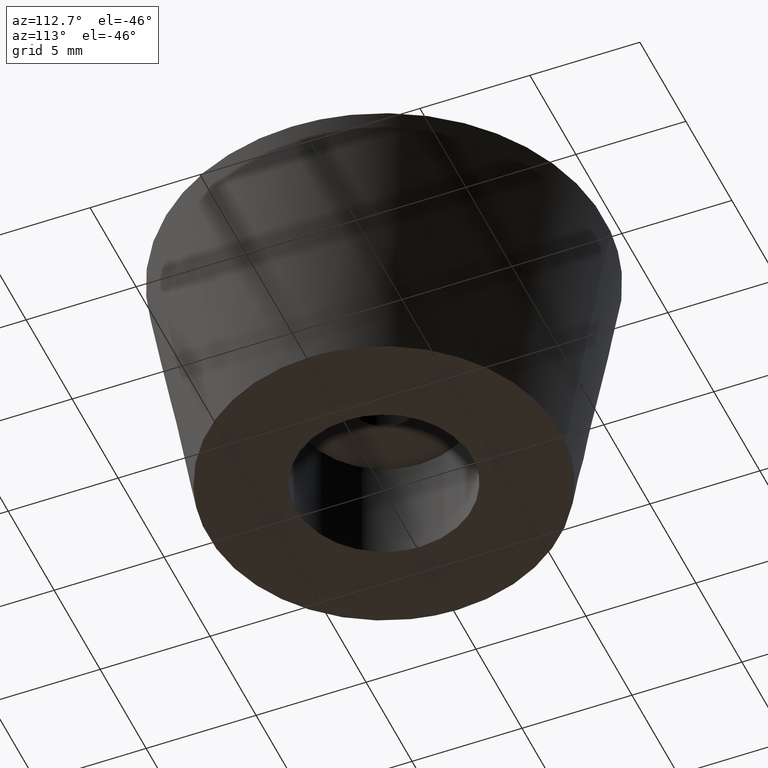
[diagram: clean part render]
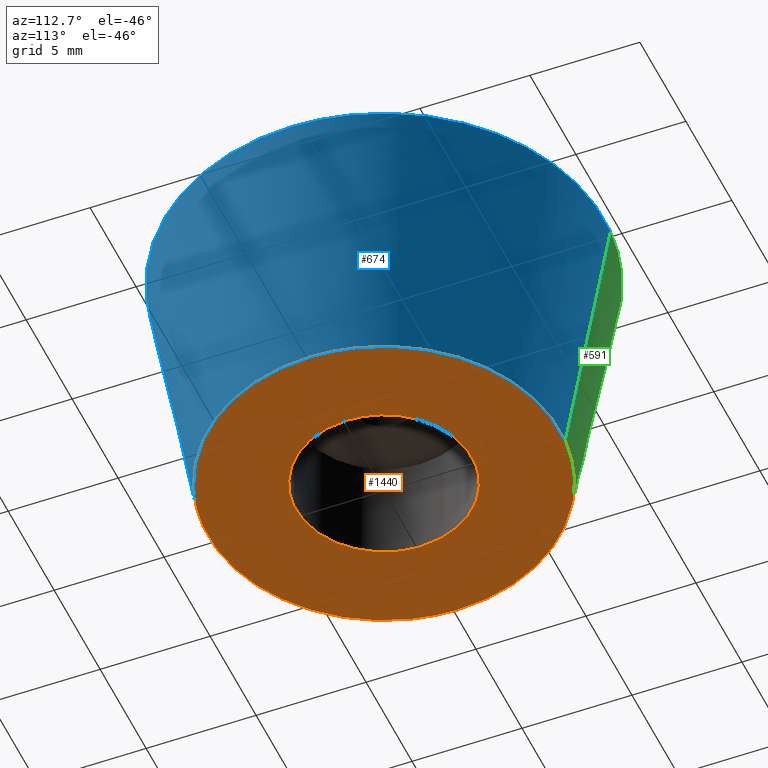
[diagram: same view with three faces highlighted in distinct colors, each labeled with its STEP entity id]
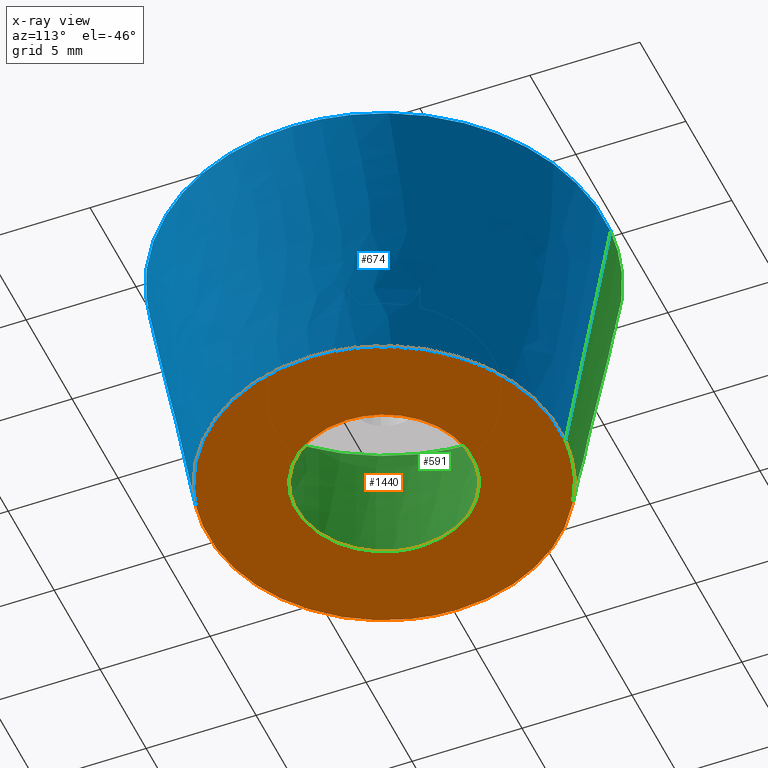
[diagram: x-ray of the same camera — body ghosted, the three highlighted faces saturated]
A machine part, auxiliary view with three faces highlighted in distinct colors.
The next image is the same camera in x-ray (body ghosted, the three faces saturated) — at least one of them is partly hidden behind the body in this view.
Their STEP definitions:

[orange] entity #1440 — the highlighted face is a freeform B-spline surface patch.
#511=CARTESIAN_POINT('',(-8.0,0.0,0.0));
#512=VERTEX_POINT('',#511);
#513=CARTESIAN_POINT('',(-0.627667565041564,7.975338703403389,-0.000002247661498));
#514=VERTEX_POINT('',#513);
#515=CARTESIAN_POINT('',(-8.0,0.0,0.0));
#516=CARTESIAN_POINT('',(-7.999999985304264,7.395128556531391,-0.000001123830749));
#517=CARTESIAN_POINT('',(-0.627667565041564,7.975338703403389,-0.000002247661498));
#525=(BOUNDED_CURVE()B_SPLINE_CURVE(2,(#515,#516,#517),.UNSPECIFIED.,.F.,.U.)B_SPLINE_CURVE_WITH_KNOTS((3,3),(0.0,0.236331411788289),.UNSPECIFIED.)CURVE()GEOMETRIC_REPRESENTATION_ITEM()RATIONAL_B_SPLINE_CURVE((1.0,0.723120528378403,0.969723588145025))REPRESENTATION_ITEM(''));
#526=EDGE_CURVE('',#512,#514,#525,.T.);
#528=CARTESIAN_POINT('',(0.627667565041564,-7.975338703403388,-0.000002247661499));
#529=VERTEX_POINT('',#528);
#530=CARTESIAN_POINT('',(0.627667565041564,-7.975338703403388,-0.000002247661499));
#531=CARTESIAN_POINT('',(0.314318229509466,-7.999999633324672,-0.000002206844950));
#532=CARTESIAN_POINT('',(-0.000000028280341,-7.999999640661196,-0.000002162689884));
#533=CARTESIAN_POINT('',(-8.000000013584607,-7.999999827389770,-0.000001038859135));
#534=CARTESIAN_POINT('',(-8.0,0.0,0.0));
#542=(BOUNDED_CURVE()B_SPLINE_CURVE(2,(#530,#531,#532,#533,#534),.UNSPECIFIED.,.F.,.U.)B_SPLINE_CURVE_WITH_KNOTS((3,2,3),(0.736331411788289,0.750000000000000,1.0),.UNSPECIFIED.)CURVE()GEOMETRIC_REPRESENTATION_ITEM()RATIONAL_B_SPLINE_CURVE((0.969723588145025,0.983986252808145,1.0,0.707106781186548,1.0))REPRESENTATION_ITEM(''));
#543=EDGE_CURVE('',#529,#512,#542,.T.);
#610=CARTESIAN_POINT('',(8.0,0.0,0.0));
#611=VERTEX_POINT('',#610);
#612=CARTESIAN_POINT('',(-0.627667565041564,7.975338703403389,-0.000002247661498));
#613=CARTESIAN_POINT('',(-0.314318229509465,7.999999633324673,-0.000002206844949));
#614=CARTESIAN_POINT('',(0.000000028280343,7.999999640661197,-0.000002162689883));
#615=CARTESIAN_POINT('',(8.000000013584607,7.999999827389770,-0.000001038859134));
#616=CARTESIAN_POINT('',(8.0,0.0,0.0));
#624=(BOUNDED_CURVE()B_SPLINE_CURVE(2,(#612,#613,#614,#615,#616),.UNSPECIFIED.,.F.,.U.)B_SPLINE_CURVE_WITH_KNOTS((3,2,3),(0.236331411788289,0.250000000000000,0.500000000000000),.UNSPECIFIED.)CURVE()GEOMETRIC_REPRESENTATION_ITEM()RATIONAL_B_SPLINE_CURVE((0.969723588145025,0.983986252808145,1.0,0.707106781186548,1.0))REPRESENTATION_ITEM(''));
#625=EDGE_CURVE('',#514,#611,#624,.T.);
#659=CARTESIAN_POINT('',(8.0,0.0,0.0));
#660=CARTESIAN_POINT('',(7.999999985304266,-7.395128556531391,-0.000001123830749));
#661=CARTESIAN_POINT('',(0.627667565041564,-7.975338703403388,-0.000002247661499));
#669=(BOUNDED_CURVE()B_SPLINE_CURVE(2,(#659,#660,#661),.UNSPECIFIED.,.F.,.U.)B_SPLINE_CURVE_WITH_KNOTS((3,3),(0.500000000000000,0.736331411788289),.UNSPECIFIED.)CURVE()GEOMETRIC_REPRESENTATION_ITEM()RATIONAL_B_SPLINE_CURVE((1.0,0.723120528378403,0.969723588145025))REPRESENTATION_ITEM(''));
#670=EDGE_CURVE('',#611,#529,#669,.T.);
#1255=CARTESIAN_POINT('',(-0.472129948118010,3.972038936370151,4.401114E-016));
#1256=VERTEX_POINT('',#1255);
#1257=CARTESIAN_POINT('',(4.0,0.0,0.0));
#1258=VERTEX_POINT('',#1257);
#1259=CARTESIAN_POINT('',(-0.472129948118010,3.972038936370151,4.401114E-016));
#1260=CARTESIAN_POINT('',(-0.236892946402667,4.0,0.0));
#1261=CARTESIAN_POINT('',(0.0,4.0,0.0));
#1262=CARTESIAN_POINT('',(4.000000000000000,4.000000000000000,0.0));
#1263=CARTESIAN_POINT('',(4.0,0.0,0.0));
#1271=(BOUNDED_CURVE()B_SPLINE_CURVE(2,(#1259,#1260,#1261,#1262,#1263),.UNSPECIFIED.,.F.,.U.)B_SPLINE_CURVE_WITH_KNOTS((3,2,3),(0.229562770949563,0.250000000000000,0.500000000000000),.UNSPECIFIED.)CURVE()GEOMETRIC_REPRESENTATION_ITEM()RATIONAL_B_SPLINE_CURVE((0.956027337171368,0.976056296799159,1.0,0.707106781186548,1.0))REPRESENTATION_ITEM(''));
#1272=EDGE_CURVE('',#1256,#1258,#1271,.T.);
#1274=CARTESIAN_POINT('',(0.244192892551057,-3.992539271093766,2.491063E-015));
#1275=VERTEX_POINT('',#1274);
#1276=CARTESIAN_POINT('',(4.0,0.0,0.0));
#1277=CARTESIAN_POINT('',(4.000000000000001,-3.762825462623270,0.0));
#1278=CARTESIAN_POINT('',(0.244192892551057,-3.992539271093766,2.491063E-015));
#1286=(BOUNDED_CURVE()B_SPLINE_CURVE(2,(#1276,#1277,#1278),.UNSPECIFIED.,.F.,.U.)B_SPLINE_CURVE_WITH_KNOTS((3,3),(0.500000000000000,0.739333016937291),.UNSPECIFIED.)CURVE()GEOMETRIC_REPRESENTATION_ITEM()RATIONAL_B_SPLINE_CURVE((1.0,0.719603929203609,0.976072158895718))REPRESENTATION_ITEM(''));
#1287=EDGE_CURVE('',#1258,#1275,#1286,.T.);
#1358=CARTESIAN_POINT('',(-4.0,0.0,0.0));
#1359=VERTEX_POINT('',#1358);
#1360=CARTESIAN_POINT('',(-4.0,0.0,0.0));
#1361=CARTESIAN_POINT('',(-4.000000000000000,3.552704400324676,0.0));
#1362=CARTESIAN_POINT('',(-0.472129948118010,3.972038936370151,4.401114E-016));
#1370=(BOUNDED_CURVE()B_SPLINE_CURVE(2,(#1360,#1361,#1362),.UNSPECIFIED.,.F.,.U.)B_SPLINE_CURVE_WITH_KNOTS((3,3),(0.0,0.229562770949563),.UNSPECIFIED.)CURVE()GEOMETRIC_REPRESENTATION_ITEM()RATIONAL_B_SPLINE_CURVE((1.0,0.731050484387389,0.956027337171368))REPRESENTATION_ITEM(''));
#1371=EDGE_CURVE('',#1359,#1256,#1370,.T.);
#1405=CARTESIAN_POINT('',(0.244192892551057,-3.992539271093766,2.491063E-015));
#1406=CARTESIAN_POINT('',(0.122210418625892,-4.000000000000001,0.0));
#1407=CARTESIAN_POINT('',(0.0,-4.0,0.0));
#1408=CARTESIAN_POINT('',(-4.000000000000000,-4.000000000000000,0.0));
#1409=CARTESIAN_POINT('',(-4.0,0.0,0.0));
#1417=(BOUNDED_CURVE()B_SPLINE_CURVE(2,(#1405,#1406,#1407,#1408,#1409),.UNSPECIFIED.,.F.,.U.)B_SPLINE_CURVE_WITH_KNOTS((3,2,3),(0.739333016937291,0.750000000000000,1.0),.UNSPECIFIED.)CURVE()GEOMETRIC_REPRESENTATION_ITEM()RATIONAL_B_SPLINE_CURVE((0.976072158895718,0.987502851982938,1.0,0.707106781186548,1.0))REPRESENTATION_ITEM(''));
#1418=EDGE_CURVE('',#1275,#1359,#1417,.T.);
#1423=CARTESIAN_POINT('',(-8.799199968988896,-8.796757514061921,0.0));
#1424=CARTESIAN_POINT('',(8.799200398142338,-8.796757514061921,0.0));
#1425=CARTESIAN_POINT('',(-8.799199968988896,8.796757227959626,0.0));
#1426=CARTESIAN_POINT('',(8.799200398142338,8.796757227959626,0.0));
#1427=B_SPLINE_SURFACE_WITH_KNOTS('',1,1,((#1423,#1425),(#1424,#1426)),.UNSPECIFIED.,.F.,.F.,.U.,(2,2),(2,2),(0.0,17.598400367131230),(0.0,17.593514742021551),.UNSPECIFIED.);
#1428=ORIENTED_EDGE('',*,*,#526,.T.);
#1429=ORIENTED_EDGE('',*,*,#625,.T.);
#1430=ORIENTED_EDGE('',*,*,#670,.T.);
#1431=ORIENTED_EDGE('',*,*,#543,.T.);
#1432=EDGE_LOOP('',(#1428,#1429,#1430,#1431));
#1433=FACE_OUTER_BOUND('',#1432,.T.);
#1434=ORIENTED_EDGE('',*,*,#1287,.F.);
#1435=ORIENTED_EDGE('',*,*,#1272,.F.);
#1436=ORIENTED_EDGE('',*,*,#1371,.F.);
#1437=ORIENTED_EDGE('',*,*,#1418,.F.);
#1438=EDGE_LOOP('',(#1434,#1435,#1436,#1437));
#1439=FACE_BOUND('',#1438,.T.);
#1440=ADVANCED_FACE('',(#1433,#1439),#1427,.F.);

[blue] entity #674 — the highlighted face is a freeform B-spline surface patch.
#513=CARTESIAN_POINT('',(-0.627667565041564,7.975338703403389,-0.000002247661498));
#514=VERTEX_POINT('',#513);
#528=CARTESIAN_POINT('',(0.627667565041564,-7.975338703403388,-0.000002247661499));
#529=VERTEX_POINT('',#528);
#545=CARTESIAN_POINT('',(0.784585191233455,-9.969173368294124,11.999997470832160));
#546=VERTEX_POINT('',#545);
#547=CARTESIAN_POINT('',(0.627667565041564,-7.975338703403388,-0.000002247661499));
#548=CARTESIAN_POINT('',(0.784585191233455,-9.969173368294124,11.999997470832160));
#549=QUASI_UNIFORM_CURVE('',1,(#547,#548),.UNSPECIFIED.,.F.,.U.);
#550=EDGE_CURVE('',#529,#546,#549,.T.);
#569=CARTESIAN_POINT('',(-0.784585191233454,9.969173368294124,11.999997470832170));
#570=VERTEX_POINT('',#569);
#584=CARTESIAN_POINT('',(-0.627667565041564,7.975338703403389,-0.000002247661498));
#585=CARTESIAN_POINT('',(-0.784585191233454,9.969173368294124,11.999997470832170));
#586=QUASI_UNIFORM_CURVE('',1,(#584,#585),.UNSPECIFIED.,.F.,.U.);
#587=EDGE_CURVE('',#514,#570,#586,.T.);
#592=CARTESIAN_POINT('',(0.623749811036372,-7.925492803178369,-0.300000000000000));
#593=CARTESIAN_POINT('',(8.549242614214741,-7.301742992141997,-0.300000000000000));
#594=CARTESIAN_POINT('',(7.925492803178369,0.623749811036372,-0.300000000000000));
#595=CARTESIAN_POINT('',(7.301742992141997,8.549242614214741,-0.300000000000000));
#596=CARTESIAN_POINT('',(-0.623749811036372,7.925492803178369,-0.300000000000000));
#597=CARTESIAN_POINT('',(0.788611985934508,-10.020265350685101,12.307499999999999));
#598=CARTESIAN_POINT('',(10.808877336619608,-9.231653364750594,12.307500000000005));
#599=CARTESIAN_POINT('',(10.020265350685101,0.788611985934508,12.307499999999999));
#600=CARTESIAN_POINT('',(9.231653364750594,10.808877336619608,12.307500000000005));
#601=CARTESIAN_POINT('',(-0.788611985934508,10.020265350685101,12.307499999999999));
#609=(BOUNDED_SURFACE()B_SPLINE_SURFACE(2,1,((#592,#597),(#593,#598),(#594,#599),(#595,#600),(#596,#601)),.UNSPECIFIED.,.F.,.F.,.U.)B_SPLINE_SURFACE_WITH_KNOTS((3,2,3),(2,2),(0.0,16.653456275210281,33.306912550420563),(0.0,12.781404766789141),.UNSPECIFIED.)GEOMETRIC_REPRESENTATION_ITEM()RATIONAL_B_SPLINE_SURFACE(((1.0,1.0),(0.707106781186548,0.707106781186548),(1.0,1.0),(0.707106781186548,0.707106781186548),(1.0,1.0)))REPRESENTATION_ITEM('')SURFACE());
#610=CARTESIAN_POINT('',(8.0,0.0,0.0));
#611=VERTEX_POINT('',#610);
#612=CARTESIAN_POINT('',(-0.627667565041564,7.975338703403389,-0.000002247661498));
#613=CARTESIAN_POINT('',(-0.314318229509465,7.999999633324673,-0.000002206844949));
#614=CARTESIAN_POINT('',(0.000000028280343,7.999999640661197,-0.000002162689883));
#615=CARTESIAN_POINT('',(8.000000013584607,7.999999827389770,-0.000001038859134));
#616=CARTESIAN_POINT('',(8.0,0.0,0.0));
#624=(BOUNDED_CURVE()B_SPLINE_CURVE(2,(#612,#613,#614,#615,#616),.UNSPECIFIED.,.F.,.U.)B_SPLINE_CURVE_WITH_KNOTS((3,2,3),(0.236331411788289,0.250000000000000,0.500000000000000),.UNSPECIFIED.)CURVE()GEOMETRIC_REPRESENTATION_ITEM()RATIONAL_B_SPLINE_CURVE((0.969723588145025,0.983986252808145,1.0,0.707106781186548,1.0))REPRESENTATION_ITEM(''));
#625=EDGE_CURVE('',#514,#611,#624,.T.);
#626=ORIENTED_EDGE('',*,*,#625,.F.);
#627=ORIENTED_EDGE('',*,*,#587,.T.);
#628=CARTESIAN_POINT('',(10.0,0.0,12.0));
#629=VERTEX_POINT('',#628);
#630=CARTESIAN_POINT('',(-0.784585191233454,9.969173368294124,11.999997470832167));
#631=CARTESIAN_POINT('',(-0.392898157816127,9.999999587400991,11.999997516760786));
#632=CARTESIAN_POINT('',(0.000000031822300,9.999999595656375,11.999997566446060));
#633=CARTESIAN_POINT('',(10.000000015286004,9.999999805771481,11.999998831029977));
#634=CARTESIAN_POINT('',(10.0,0.0,12.0));
#642=(BOUNDED_CURVE()B_SPLINE_CURVE(2,(#630,#631,#632,#633,#634),.UNSPECIFIED.,.F.,.U.)B_SPLINE_CURVE_WITH_KNOTS((3,2,3),(0.236331399213855,0.250000000000000,0.500000000000000),.UNSPECIFIED.)CURVE()GEOMETRIC_REPRESENTATION_ITEM()RATIONAL_B_SPLINE_CURVE((0.969723561903117,0.983986238076280,1.0,0.707106781186548,1.0))REPRESENTATION_ITEM(''));
#643=EDGE_CURVE('',#570,#629,#642,.T.);
#644=ORIENTED_EDGE('',*,*,#643,.T.);
#645=CARTESIAN_POINT('',(10.0,0.0,12.0));
#646=CARTESIAN_POINT('',(9.999999983463704,-9.243910038798353,11.999998735416083));
#647=CARTESIAN_POINT('',(0.784585191233455,-9.969173368294124,11.999997470832158));
#655=(BOUNDED_CURVE()B_SPLINE_CURVE(2,(#645,#646,#647),.UNSPECIFIED.,.F.,.U.)B_SPLINE_CURVE_WITH_KNOTS((3,3),(0.500000000000000,0.736331399213855),.UNSPECIFIED.)CURVE()GEOMETRIC_REPRESENTATION_ITEM()RATIONAL_B_SPLINE_CURVE((1.0,0.723120543110268,0.969723561903116))REPRESENTATION_ITEM(''));
#656=EDGE_CURVE('',#629,#546,#655,.T.);
#657=ORIENTED_EDGE('',*,*,#656,.T.);
#658=ORIENTED_EDGE('',*,*,#550,.F.);
#659=CARTESIAN_POINT('',(8.0,0.0,0.0));
#660=CARTESIAN_POINT('',(7.999999985304266,-7.395128556531391,-0.000001123830749));
#661=CARTESIAN_POINT('',(0.627667565041564,-7.975338703403388,-0.000002247661499));
#669=(BOUNDED_CURVE()B_SPLINE_CURVE(2,(#659,#660,#661),.UNSPECIFIED.,.F.,.U.)B_SPLINE_CURVE_WITH_KNOTS((3,3),(0.500000000000000,0.736331411788289),.UNSPECIFIED.)CURVE()GEOMETRIC_REPRESENTATION_ITEM()RATIONAL_B_SPLINE_CURVE((1.0,0.723120528378403,0.969723588145025))REPRESENTATION_ITEM(''));
#670=EDGE_CURVE('',#611,#529,#669,.T.);
#671=ORIENTED_EDGE('',*,*,#670,.F.);
#672=EDGE_LOOP('',(#626,#627,#644,#657,#658,#671));
#673=FACE_OUTER_BOUND('',#672,.T.);
#674=ADVANCED_FACE('',(#673),#609,.T.);

[green] entity #591 — the highlighted face is a freeform B-spline surface patch.
#493=CARTESIAN_POINT('',(-0.623749811036372,7.925492803178369,-0.300000000000000));
#494=CARTESIAN_POINT('',(-8.549242614214741,7.301742992141997,-0.300000000000000));
#495=CARTESIAN_POINT('',(-7.925492803178369,-0.623749811036372,-0.300000000000000));
#496=CARTESIAN_POINT('',(-7.301742992141997,-8.549242614214741,-0.300000000000000));
#497=CARTESIAN_POINT('',(0.623749811036372,-7.925492803178369,-0.300000000000000));
#498=CARTESIAN_POINT('',(-0.788611985934508,10.020265350685101,12.307499999999999));
#499=CARTESIAN_POINT('',(-10.808877336619608,9.231653364750594,12.307500000000005));
#500=CARTESIAN_POINT('',(-10.020265350685101,-0.788611985934508,12.307499999999999));
#501=CARTESIAN_POINT('',(-9.231653364750594,-10.808877336619608,12.307500000000005));
#502=CARTESIAN_POINT('',(0.788611985934508,-10.020265350685101,12.307499999999999));
#510=(BOUNDED_SURFACE()B_SPLINE_SURFACE(2,1,((#493,#498),(#494,#499),(#495,#500),(#496,#501),(#497,#502)),.UNSPECIFIED.,.F.,.F.,.U.)B_SPLINE_SURFACE_WITH_KNOTS((3,2,3),(2,2),(0.0,16.653456275210281,33.306912550420563),(0.0,12.781404766789141),.UNSPECIFIED.)GEOMETRIC_REPRESENTATION_ITEM()RATIONAL_B_SPLINE_SURFACE(((1.0,1.0),(0.707106781186548,0.707106781186548),(1.0,1.0),(0.707106781186548,0.707106781186548),(1.0,1.0)))REPRESENTATION_ITEM('')SURFACE());
#511=CARTESIAN_POINT('',(-8.0,0.0,0.0));
#512=VERTEX_POINT('',#511);
#513=CARTESIAN_POINT('',(-0.627667565041564,7.975338703403389,-0.000002247661498));
#514=VERTEX_POINT('',#513);
#515=CARTESIAN_POINT('',(-8.0,0.0,0.0));
#516=CARTESIAN_POINT('',(-7.999999985304264,7.395128556531391,-0.000001123830749));
#517=CARTESIAN_POINT('',(-0.627667565041564,7.975338703403389,-0.000002247661498));
#525=(BOUNDED_CURVE()B_SPLINE_CURVE(2,(#515,#516,#517),.UNSPECIFIED.,.F.,.U.)B_SPLINE_CURVE_WITH_KNOTS((3,3),(0.0,0.236331411788289),.UNSPECIFIED.)CURVE()GEOMETRIC_REPRESENTATION_ITEM()RATIONAL_B_SPLINE_CURVE((1.0,0.723120528378403,0.969723588145025))REPRESENTATION_ITEM(''));
#526=EDGE_CURVE('',#512,#514,#525,.T.);
#527=ORIENTED_EDGE('',*,*,#526,.F.);
#528=CARTESIAN_POINT('',(0.627667565041564,-7.975338703403388,-0.000002247661499));
#529=VERTEX_POINT('',#528);
#530=CARTESIAN_POINT('',(0.627667565041564,-7.975338703403388,-0.000002247661499));
#531=CARTESIAN_POINT('',(0.314318229509466,-7.999999633324672,-0.000002206844950));
#532=CARTESIAN_POINT('',(-0.000000028280341,-7.999999640661196,-0.000002162689884));
#533=CARTESIAN_POINT('',(-8.000000013584607,-7.999999827389770,-0.000001038859135));
#534=CARTESIAN_POINT('',(-8.0,0.0,0.0));
#542=(BOUNDED_CURVE()B_SPLINE_CURVE(2,(#530,#531,#532,#533,#534),.UNSPECIFIED.,.F.,.U.)B_SPLINE_CURVE_WITH_KNOTS((3,2,3),(0.736331411788289,0.750000000000000,1.0),.UNSPECIFIED.)CURVE()GEOMETRIC_REPRESENTATION_ITEM()RATIONAL_B_SPLINE_CURVE((0.969723588145025,0.983986252808145,1.0,0.707106781186548,1.0))REPRESENTATION_ITEM(''));
#543=EDGE_CURVE('',#529,#512,#542,.T.);
#544=ORIENTED_EDGE('',*,*,#543,.F.);
#545=CARTESIAN_POINT('',(0.784585191233455,-9.969173368294124,11.999997470832160));
#546=VERTEX_POINT('',#545);
#547=CARTESIAN_POINT('',(0.627667565041564,-7.975338703403388,-0.000002247661499));
#548=CARTESIAN_POINT('',(0.784585191233455,-9.969173368294124,11.999997470832160));
#549=QUASI_UNIFORM_CURVE('',1,(#547,#548),.UNSPECIFIED.,.F.,.U.);
#550=EDGE_CURVE('',#529,#546,#549,.T.);
#551=ORIENTED_EDGE('',*,*,#550,.T.);
#552=CARTESIAN_POINT('',(-10.0,0.0,12.0));
#553=VERTEX_POINT('',#552);
#554=CARTESIAN_POINT('',(0.784585191233455,-9.969173368294124,11.999997470832158));
#555=CARTESIAN_POINT('',(0.392898157816126,-9.999999587400994,11.999997516760786));
#556=CARTESIAN_POINT('',(-0.000000031822302,-9.999999595656378,11.999997566446060));
#557=CARTESIAN_POINT('',(-10.000000015286004,-9.999999805771482,11.999998831029975));
#558=CARTESIAN_POINT('',(-10.0,0.0,12.0));
#566=(BOUNDED_CURVE()B_SPLINE_CURVE(2,(#554,#555,#556,#557,#558),.UNSPECIFIED.,.F.,.U.)B_SPLINE_CURVE_WITH_KNOTS((3,2,3),(0.736331399213855,0.750000000000000,1.0),.UNSPECIFIED.)CURVE()GEOMETRIC_REPRESENTATION_ITEM()RATIONAL_B_SPLINE_CURVE((0.969723561903116,0.983986238076279,1.0,0.707106781186548,1.0))REPRESENTATION_ITEM(''));
#567=EDGE_CURVE('',#546,#553,#566,.T.);
#568=ORIENTED_EDGE('',*,*,#567,.T.);
#569=CARTESIAN_POINT('',(-0.784585191233454,9.969173368294124,11.999997470832170));
#570=VERTEX_POINT('',#569);
#571=CARTESIAN_POINT('',(-10.0,0.0,12.0));
#572=CARTESIAN_POINT('',(-9.999999983463706,9.243910038798358,11.999998735416085));
#573=CARTESIAN_POINT('',(-0.784585191233454,9.969173368294124,11.999997470832167));
#581=(BOUNDED_CURVE()B_SPLINE_CURVE(2,(#571,#572,#573),.UNSPECIFIED.,.F.,.U.)B_SPLINE_CURVE_WITH_KNOTS((3,3),(0.0,0.236331399213855),.UNSPECIFIED.)CURVE()GEOMETRIC_REPRESENTATION_ITEM()RATIONAL_B_SPLINE_CURVE((1.0,0.723120543110268,0.969723561903117))REPRESENTATION_ITEM(''));
#582=EDGE_CURVE('',#553,#570,#581,.T.);
#583=ORIENTED_EDGE('',*,*,#582,.T.);
#584=CARTESIAN_POINT('',(-0.627667565041564,7.975338703403389,-0.000002247661498));
#585=CARTESIAN_POINT('',(-0.784585191233454,9.969173368294124,11.999997470832170));
#586=QUASI_UNIFORM_CURVE('',1,(#584,#585),.UNSPECIFIED.,.F.,.U.);
#587=EDGE_CURVE('',#514,#570,#586,.T.);
#588=ORIENTED_EDGE('',*,*,#587,.F.);
#589=EDGE_LOOP('',(#527,#544,#551,#568,#583,#588));
#590=FACE_OUTER_BOUND('',#589,.T.);
#591=ADVANCED_FACE('',(#590),#510,.T.);